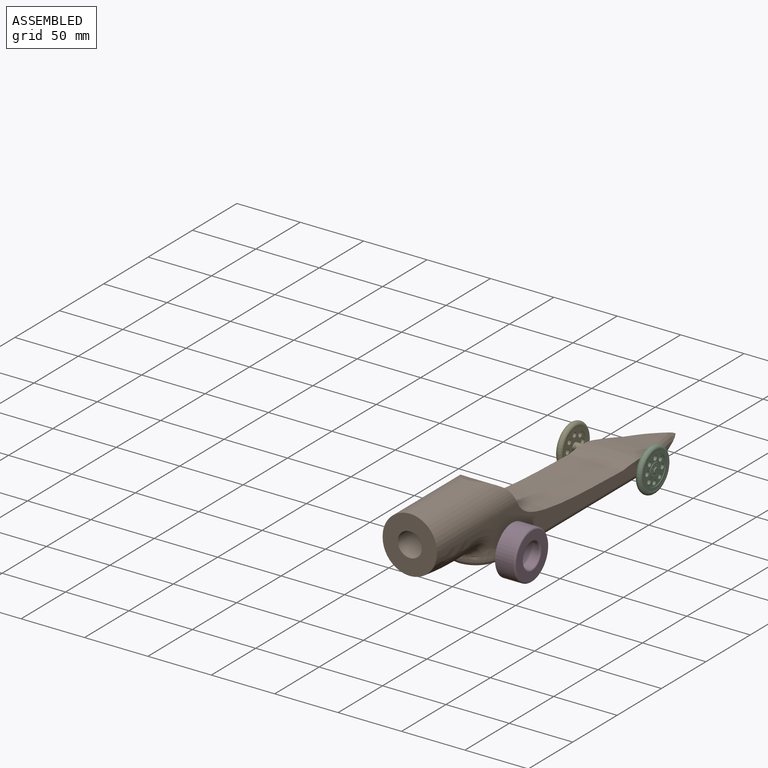
[diagram: assembled view]
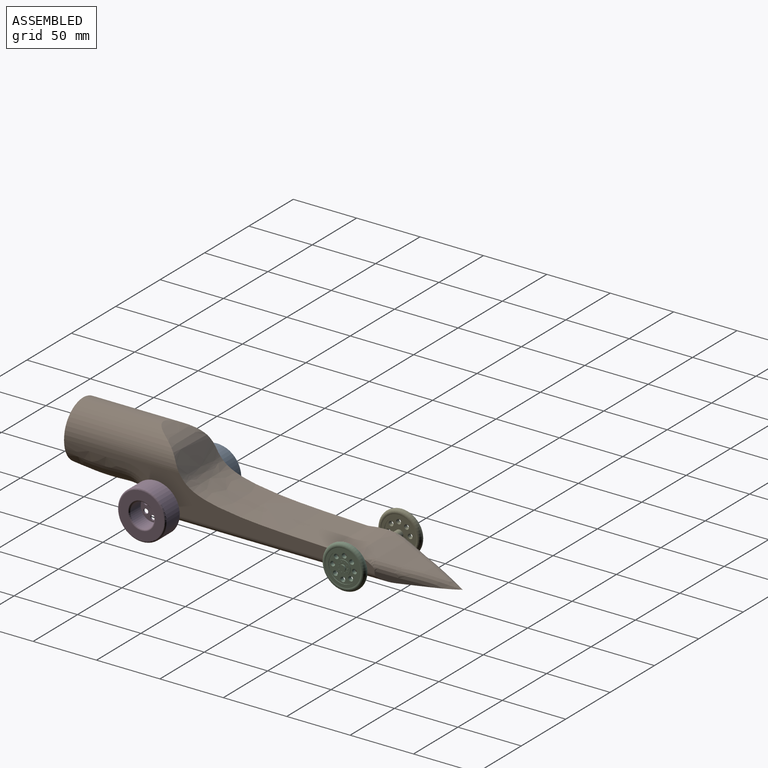
[diagram: assembled view, second angle]
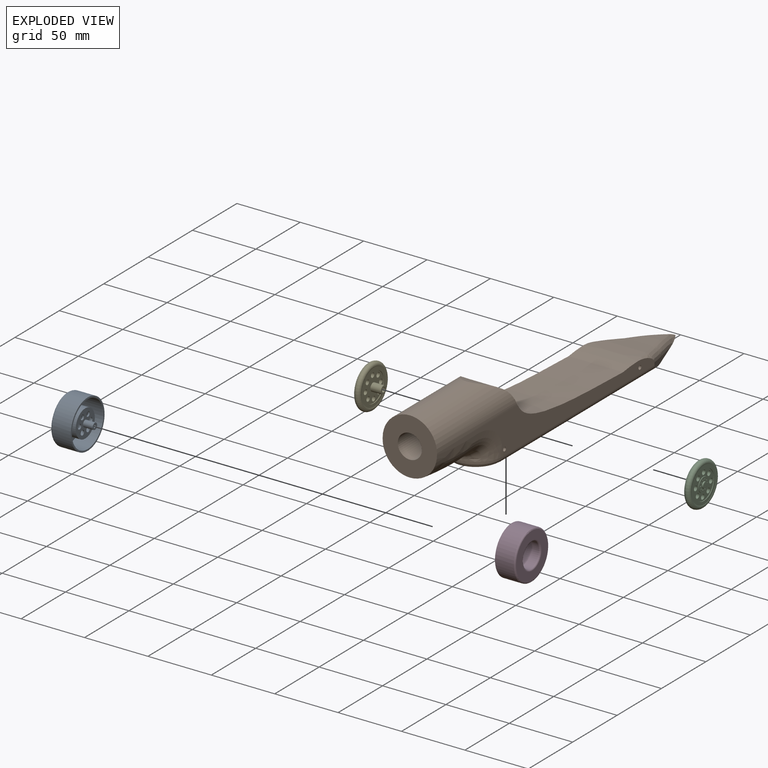
[diagram: exploded view]
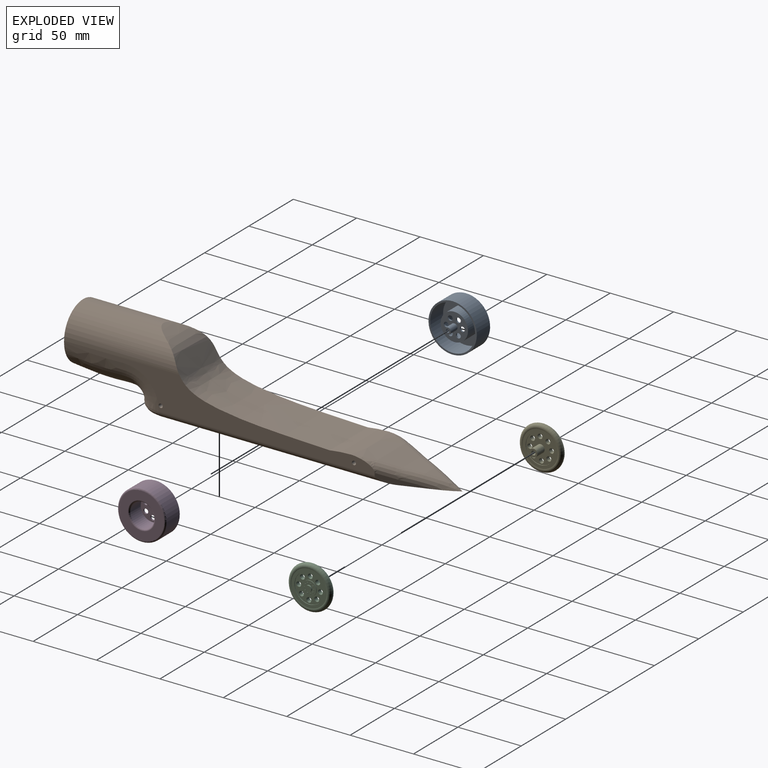
[diagram: exploded view, second angle]
ASSEMBLY  parts=5 mates=8
PART A: 20 faces, bbox 41.2x41.2x21.6 mm
  f0: cylinder r=19.05mm len=38.1mm, axis (0,0,1), area 1748.1mm2, adj f2,f19
  f1: plane 35.56x35.56mm, normal (0,0,-1), area 627.1mm2, adj f18,f19
  f2: plane 38.1x38.1mm, normal (0,0,1), area 146.9mm2, adj f0,f5
  f3: cylinder r=9.53mm len=19.05mm, axis (0,0,-1), area 684.1mm2, adj f4,f18
  f4: plane 19.05x19.05mm, normal (0,0,-1), area 211.6mm2, adj f3,f9,f10,f11,f12,f13,f14,f17
  f5: cylinder r=17.78mm len=35.56mm, axis (0,0,1), area 1631.6mm2, adj f2,f6
  f6: plane 35.56x35.56mm, normal (0,0,1), area 627.1mm2, adj f5,f7
  f7: cylinder r=10.79mm len=21.59mm, axis (0,0,-1), area 861.4mm2, adj f6,f8
  f8: plane 21.59x21.59mm, normal (0,0,1), area 277.4mm2, adj f7,f9,f10,f11,f12,f13,f14,f15
  f9: cylinder r=1.91mm len=3.81mm, axis (0,0,-1), area 15.2mm2, adj f4,f8
  f10: cylinder r=1.91mm len=3.81mm, axis (0,0,-1), area 15.2mm2, adj f4,f8
  f11: cylinder r=1.91mm len=3.81mm, axis (0,0,-1), area 15.2mm2, adj f4,f8
  f12: cylinder r=1.91mm len=3.81mm, axis (0,0,-1), area 15.2mm2, adj f4,f8
  f13: cylinder r=1.91mm len=3.81mm, axis (0,0,-1), area 15.2mm2, adj f4,f8
  f14: cylinder r=1.91mm len=3.81mm, axis (0,0,-1), area 15.2mm2, adj f4,f8
  f15: cylinder r=2.54mm len=7.62mm, axis (0,0,-1), area 121.6mm2, adj f8,f16
  f16: plane 5.08x5.08mm, normal (0,0,1), area 15.2mm2, adj f15,f17
  f17: cylinder r=1.27mm len=8.89mm, axis (0,0,1), area 70.9mm2, adj f4,f16
  f18: torus R=10.79mm, axis (0,0,-1), area 125.2mm2, adj f1,f3
  f19: torus R=17.78mm, axis (0,0,-1), area 233mm2, adj f0,f1
PART B: 25 faces, bbox 63.1x316.6x68 mm
  f0: plane 241.4x32.7mm, normal (0,0,-1), area 7178.3mm2, adj f15,f16,f19,f20,f21,f22,f23,f24
  f1: plane 45.61x44.04mm, normal (0,-1,0), area 1218.1mm2, adj f2,f3,f4,f11,f12,f13,f14
  f2: plane 244.99x33.65mm, normal (1,0,0), area 2679.1mm2, adj f1,f6,f7,f9,f10,f12,f13,f16
  f3: plane 245x33.66mm, normal (-1,0,0), area 2678.8mm2, adj f1,f6,f7,f9,f10,f11,f14,f15
  f4: cylinder r=9.53mm len=50.8mm, axis (0,-1,0), area 3040.2mm2, adj f1,f5
  f5: plane 19.05x19.05mm, normal (0,-1,0), area 285mm2, adj f4
  f6: cylinder r=1.59mm len=42.86mm, axis (1,0,0), area 427.5mm2, adj f2,f3
  f7: cylinder r=1.59mm len=42.86mm, axis (1,0,0), area 427.5mm2, adj f2,f3
  f8: extruded ~28.55x19.95mm, area 303.9mm2, adj f9,f19,f20
  f9: extruded ~49.43x42.86mm, area 1767.9mm2, adj f2,f3,f8,f10,f17,f18,f19,f20
  f10: extruded ~146.11x43.6mm, area 6076.4mm2, adj f2,f3,f9,f11,f12
  f11: cylinder r=21.59mm len=90.91mm, axis (0,1,0), area 2617.3mm2, adj f1,f3,f10,f12
  f12: cylinder r=21.59mm len=90.9mm, axis (0,1,0), area 2592.7mm2, adj f1,f2,f10,f11
  f13: bspline ~82.33x34.21mm, area 2330.7mm2, adj f1,f2,f14,f22
  f14: bspline ~82.34x31.85mm, area 2330.7mm2, adj f1,f3,f13,f24
  f15: plane 43.08x19.27mm, normal (-0.94,0.34,0), area 118.9mm2, adj f0,f3,f17,f19,f23
  f16: plane 43.08x19.27mm, normal (0.94,0.34,0), area 118.9mm2, adj f0,f2,f18,f20,f21
  f17: bspline ~44.01x20.58mm, area 222.6mm2, adj f3,f9,f15,f19
  f18: bspline ~44.01x20.58mm, area 222.6mm2, adj f2,f9,f16,f20
  f19: bspline ~52.15x23.62mm, area 338.1mm2, adj f0,f8,f9,f15,f17,f20
  f20: bspline ~52.15x23.62mm, area 338.1mm2, adj f0,f8,f9,f16,f18,f19
  f21: cylinder r=5.08mm len=184.66mm, axis (0,-1,0), area 1416.9mm2, adj f0,f2,f16,f22
  f22: bspline ~24.89x22.91mm, area 250.7mm2, adj f0,f13,f21,f24
  f23: cylinder r=5.08mm len=184.66mm, axis (0,1,0), area 1416.9mm2, adj f0,f3,f15,f24
  f24: bspline ~24.89x22.91mm, area 250.7mm2, adj f0,f14,f22,f23
PART C: 43 faces, bbox 43.9x22.9x43.9 mm
  f0: revolved ~34.31x34.31mm, area 855.2mm2, adj f16,f18
  f1: plane 23.03x23.03mm, normal (0,-1,0), area 296.9mm2, adj f6,f7,f8,f9,f10,f11,f12,f13
  f2: plane 11.33x11.33mm, normal (0,1,0), area 76.5mm2, adj f3,f5,f19,f21,f23,f25,f27,f29
  f3: cylinder r=2.4mm len=4.8mm, axis (0,-1,0), area 16.7mm2, adj f2,f4
  f4: plane 4.8x4.8mm, normal (0,1,0), area 18.1mm2, adj f3
  f5: cylinder r=5.66mm len=11.33mm, axis (0,-1,0), area 18.1mm2, adj f2,f14
  f6: cylinder r=1.88mm len=3.76mm, axis (0,-1,0), area 40.9mm2, adj f1,f14
  f7: cylinder r=1.88mm len=3.76mm, axis (0,-1,0), area 40.9mm2, adj f1,f14
  f8: cylinder r=1.88mm len=3.76mm, axis (0,-1,0), area 40.9mm2, adj f1,f14
  f9: cylinder r=1.88mm len=3.76mm, axis (0,-1,0), area 40.9mm2, adj f1,f14
  f10: cylinder r=1.88mm len=3.76mm, axis (0,-1,0), area 40.9mm2, adj f1,f14
  f11: cylinder r=1.88mm len=3.76mm, axis (0,-1,0), area 40.9mm2, adj f1,f14
  f12: cylinder r=1.88mm len=3.76mm, axis (0,-1,0), area 40.9mm2, adj f1,f14
  f13: cylinder r=1.88mm len=3.76mm, axis (0,-1,0), area 40.9mm2, adj f1,f14
  f14: plane 23.03x23.03mm, normal (0,1,0), area 226.8mm2, adj f5,f6,f7,f8,f9,f10,f11,f12
  f15: cylinder r=11.51mm len=23.03mm, axis (0,1,0), area 36.7mm2, adj f1,f16
  f16: plane 37.43x37.43mm, normal (0,-1,0), area 193.5mm2, adj f0,f15
  f17: cylinder r=11.51mm len=23.03mm, axis (0,1,0), area 36.7mm2, adj f14,f18
  f18: plane 37.43x37.43mm, normal (0,1,0), area 193.5mm2, adj f0,f17
  f19: cylinder r=0.44mm len=0.89mm, axis (0,-1,0), area 1.1mm2, adj f2,f20
  f20: plane 0.89x0.89mm, normal (0,1,0), area 0.6mm2, adj f19
  f21: cylinder r=0.44mm len=0.89mm, axis (0,-1,0), area 1.1mm2, adj f2,f22
  f22: plane 0.89x0.89mm, normal (0,1,0), area 0.6mm2, adj f21
  f23: cylinder r=0.44mm len=0.89mm, axis (0,-1,0), area 1.1mm2, adj f2,f24
  f24: plane 0.89x0.89mm, normal (0,1,0), area 0.6mm2, adj f23
  f25: cylinder r=0.44mm len=0.89mm, axis (0,-1,0), area 1.1mm2, adj f2,f26
  f26: plane 0.89x0.89mm, normal (0,1,0), area 0.6mm2, adj f25
  f27: cylinder r=0.44mm len=0.89mm, axis (0,-1,0), area 1.1mm2, adj f2,f28
  f28: plane 0.89x0.89mm, normal (0,1,0), area 0.6mm2, adj f27
  f29: cylinder r=0.44mm len=0.89mm, axis (0,-1,0), area 1.1mm2, adj f2,f30
  f30: plane 0.89x0.89mm, normal (0,1,0), area 0.6mm2, adj f29
  f31: cylinder r=0.44mm len=0.89mm, axis (0,-1,0), area 1.1mm2, adj f2,f32
  f32: plane 0.89x0.89mm, normal (0,1,0), area 0.6mm2, adj f31
  f33: cylinder r=0.44mm len=0.89mm, axis (0,-1,0), area 1.1mm2, adj f2,f34
  f34: plane 0.89x0.89mm, normal (0,1,0), area 0.6mm2, adj f33
  f35: cylinder r=0.44mm len=0.89mm, axis (0,-1,0), area 1.1mm2, adj f2,f36
  f36: plane 0.89x0.89mm, normal (0,1,0), area 0.6mm2, adj f35
  f37: cylinder r=0.44mm len=0.89mm, axis (0,-1,0), area 1.1mm2, adj f2,f38
  f38: plane 0.89x0.89mm, normal (0,1,0), area 0.6mm2, adj f37
  f39: cylinder r=3.12mm len=8.26mm, axis (0,1,0), area 162mm2, adj f1,f40
  f40: plane 6.25x6.25mm, normal (0,-1,0), area 21.7mm2, adj f39,f41
  f41: cylinder r=1.69mm len=10.13mm, axis (0,-1,0), area 107.6mm2, adj f40,f42
  f42: plane 3.38x3.38mm, normal (0,-1,0), area 9mm2, adj f41
PART D: same geometry as A
PART E: same geometry as C
PLACE A rot(axis=(0.71,0,0.71),180deg) t=(-83.76,-73.49,24.57)mm
PLACE B t=(-48.68,2.71,15.05)mm fixed
PLACE C rot(axis=(0.58,0.58,-0.58),120deg) t=(-18.99,93.42,-22.34)mm
PLACE D rot(axis=(-0.58,-0.58,0.58),120deg) t=(-13.6,-73.49,24.57)mm
PLACE E rot(axis=(0.58,-0.58,0.58),120deg) t=(-78.37,93.42,71.49)mm
MATE planar E.f3 <-> B.f7  axis (1,0,0) through (-70.11,78.91,24.57)mm
MATE cylindrical A.f0 <-> B.f6  axis (1,0,0) through (-70.11,-73.49,24.57)mm
MATE planar D.f0 <-> B.f6  axis (-1,0,0) through (-27.25,-73.49,24.57)mm
MATE planar A.f0 <-> B.f6  axis (1,0,0) through (-70.11,-73.49,24.57)mm
MATE planar C.f3 <-> B.f2  axis (-1,0,0) through (-27.25,78.91,24.57)mm
MATE cylindrical E.f3 <-> B.f7  axis (1,0,0) through (-70.11,78.91,24.57)mm
MATE cylindrical D.f0 <-> B.f6  axis (-1,0,0) through (-27.25,-73.49,24.57)mm
MATE cylindrical C.f3 <-> B.f7  axis (-1,0,0) through (-27.25,78.91,24.57)mm
